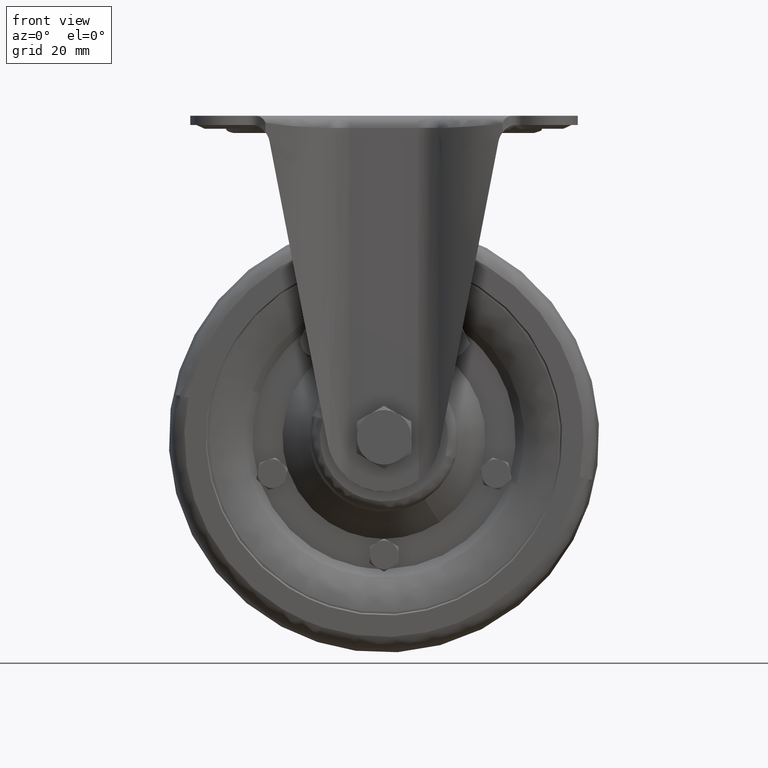
[diagram: clean part render]
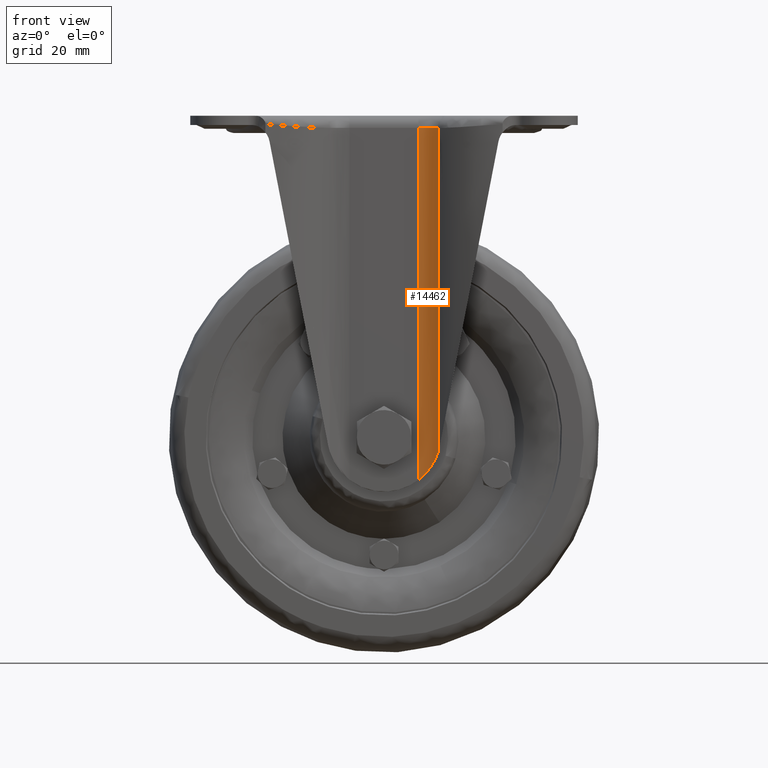
[diagram: same view with one face highlighted and labeled with its STEP entity id]
A machine part, front view. The second image highlights one B-rep face of the part: STEP entity #14462.
In plain terms, the highlighted face is a freeform B-spline surface patch.
Its self-contained STEP definition (entity closure, byte-faithful):
#12979=CARTESIAN_POINT('',(18.914967121290498,-31.823453018504100,-4.200000000000000));
#12980=VERTEX_POINT('',#12979);
#13087=CARTESIAN_POINT('',(11.998857443558160,-28.850000999952350,-4.200000000000000));
#13088=VERTEX_POINT('',#13087);
#13102=CARTESIAN_POINT('',(18.914967121290498,-31.823453018504100,-4.200000000000000));
#13103=CARTESIAN_POINT('',(16.096102253619353,-28.850001170670904,-4.200000000000000));
#13104=CARTESIAN_POINT('',(11.998857443558160,-28.850000999952361,-4.200000000000000));
#13112=(BOUNDED_CURVE()B_SPLINE_CURVE(2,(#13102,#13103,#13104),.UNSPECIFIED.,.F.,.U.)CURVE()GEOMETRIC_REPRESENTATION_ITEM()QUASI_UNIFORM_CURVE()RATIONAL_B_SPLINE_CURVE((1.0,0.918692106901594,1.0))REPRESENTATION_ITEM(''));
#13113=EDGE_CURVE('',#12980,#13088,#13112,.T.);
#14403=CARTESIAN_POINT('',(11.671046118381280,-28.855640654216661,-129.918759260613000));
#14404=CARTESIAN_POINT('',(11.671046118381280,-28.855640654216661,-1.057031018484679));
#14405=CARTESIAN_POINT('',(16.189681094580347,-28.700117566944247,-129.918759260613000));
#14406=CARTESIAN_POINT('',(16.189681094580347,-28.700117566944247,-1.057031018484679));
#14407=CARTESIAN_POINT('',(19.168365581970601,-32.101542004350563,-129.918759260612940));
#14408=CARTESIAN_POINT('',(19.168365581970601,-32.101542004350563,-1.057031018484679));
#14416=(BOUNDED_SURFACE()B_SPLINE_SURFACE(1,2,((#14403,#14405,#14407),(#14404,#14406,#14408)),.UNSPECIFIED.,.F.,.F.,.U.)B_SPLINE_SURFACE_WITH_KNOTS((2,2),(3,3),(0.0,128.861728242128290),(0.0,8.584038565011358),.UNSPECIFIED.)GEOMETRIC_REPRESENTATION_ITEM()RATIONAL_B_SPLINE_SURFACE(((1.0,0.899512527278173,0.991242649728062),(1.0,0.899512527278173,0.991242649728062)))REPRESENTATION_ITEM('')SURFACE());
#14417=CARTESIAN_POINT('',(18.914967121290498,-31.823453018504100,-116.977008132170400));
#14418=VERTEX_POINT('',#14417);
#14419=CARTESIAN_POINT('',(18.914967121290498,-31.823453018504100,-116.977008132170400));
#14420=CARTESIAN_POINT('',(18.914967121290498,-31.823453018504100,-4.200000000000000));
#14421=QUASI_UNIFORM_CURVE('',1,(#14419,#14420),.UNSPECIFIED.,.F.,.U.);
#14422=EDGE_CURVE('',#14418,#12980,#14421,.T.);
#14423=ORIENTED_EDGE('',*,*,#14422,.T.);
#14424=ORIENTED_EDGE('',*,*,#13113,.T.);
#14425=CARTESIAN_POINT('',(11.998857443558160,-28.850000999952350,-126.852448059134600));
#14426=VERTEX_POINT('',#14425);
#14427=CARTESIAN_POINT('',(11.998857443558160,-28.850000999952350,-126.852448059134600));
#14428=CARTESIAN_POINT('',(11.998857443558160,-28.850000999952350,-4.200000000000000));
#14429=QUASI_UNIFORM_CURVE('',1,(#14427,#14428),.UNSPECIFIED.,.F.,.U.);
#14430=EDGE_CURVE('',#14426,#13088,#14429,.T.);
#14431=ORIENTED_EDGE('',*,*,#14430,.F.);
#14432=CARTESIAN_POINT('',(11.998857443558190,-28.850000999952361,-126.852448059134700));
#14433=CARTESIAN_POINT('',(12.209415676100480,-28.850001008725631,-126.692167527392500));
#14434=CARTESIAN_POINT('',(12.416945719639729,-28.856971627270660,-126.527530984319900));
#14435=CARTESIAN_POINT('',(12.723648567623300,-28.877050200660172,-126.274005786484910));
#14436=CARTESIAN_POINT('',(12.825117283740800,-28.885348246491692,-126.188402004052800));
#14437=CARTESIAN_POINT('',(13.026512794053190,-28.905030786122950,-126.014993716984410));
#14438=CARTESIAN_POINT('',(13.126498380609551,-28.916427959118518,-125.927130804933200));
#14439=CARTESIAN_POINT('',(13.619599149540059,-28.980408994035969,-125.484977059908300));
#14440=CARTESIAN_POINT('',(13.994697455566500,-29.054037997811871,-125.120170260722900));
#14441=CARTESIAN_POINT('',(14.709590646283830,-29.236211402267891,-124.368764848290700));
#14442=CARTESIAN_POINT('',(15.049368926471560,-29.344810241687799,-123.982166205152500));
#14443=CARTESIAN_POINT('',(15.695688461487180,-29.589453107061502,-123.186993882352990));
#14444=CARTESIAN_POINT('',(16.002221927044069,-29.725532713120352,-122.778422888298190));
#14445=CARTESIAN_POINT('',(16.365289421452609,-29.908768265239640,-122.253489910802600));
#14446=CARTESIAN_POINT('',(16.436953291987859,-29.946106071614540,-122.147700605778790));
#14447=CARTESIAN_POINT('',(16.577717218492381,-30.021692470603210,-121.935533003469900));
#14448=CARTESIAN_POINT('',(16.785193279740149,-30.136522195753528,-121.616152413006300));
#14449=CARTESIAN_POINT('',(16.981922202901281,-30.255196795562810,-121.293322649285400));
#14450=CARTESIAN_POINT('',(17.361619393386761,-30.496371958579712,-120.642858218715500));
#14451=CARTESIAN_POINT('',(17.596439398305030,-30.662270298813940,-120.202829703722900));
#14452=CARTESIAN_POINT('',(18.031517165924331,-30.997365478404600,-119.308468899886410));
#14453=CARTESIAN_POINT('',(18.231771718799830,-31.166595125599130,-118.854146794974400));
#14454=CARTESIAN_POINT('',(18.598644315096600,-31.500665448492772,-117.928890251008400));
#14455=CARTESIAN_POINT('',(18.765267269726809,-31.665543604201400,-117.457971286275100));
#14456=CARTESIAN_POINT('',(18.914967121290509,-31.823453018504129,-116.977008132170400));
#14457=B_SPLINE_CURVE_WITH_KNOTS('',3,(#14432,#14433,#14434,#14435,#14436,#14437,#14438,#14439,#14440,#14441,#14442,#14443,#14444,#14445,#14446,#14447,#14448,#14449,#14450,#14451,#14452,#14453,#14454,#14455,#14456),.UNSPECIFIED.,.F.,.U.,(4,2,2,2,2,2,2,2,1,2,2,2,4),(0.0,0.062499999999997,0.093749999999995,0.124999999999994,0.249999999999996,0.375000000000001,0.500000000000006,0.531250000000006,0.562500000000006,0.625000000000006,0.750000000000004,0.875000000000002,1.0),.UNSPECIFIED.);
#14458=EDGE_CURVE('',#14426,#14418,#14457,.T.);
#14459=ORIENTED_EDGE('',*,*,#14458,.T.);
#14460=EDGE_LOOP('',(#14423,#14424,#14431,#14459));
#14461=FACE_OUTER_BOUND('',#14460,.T.);
#14462=ADVANCED_FACE('',(#14461),#14416,.F.);